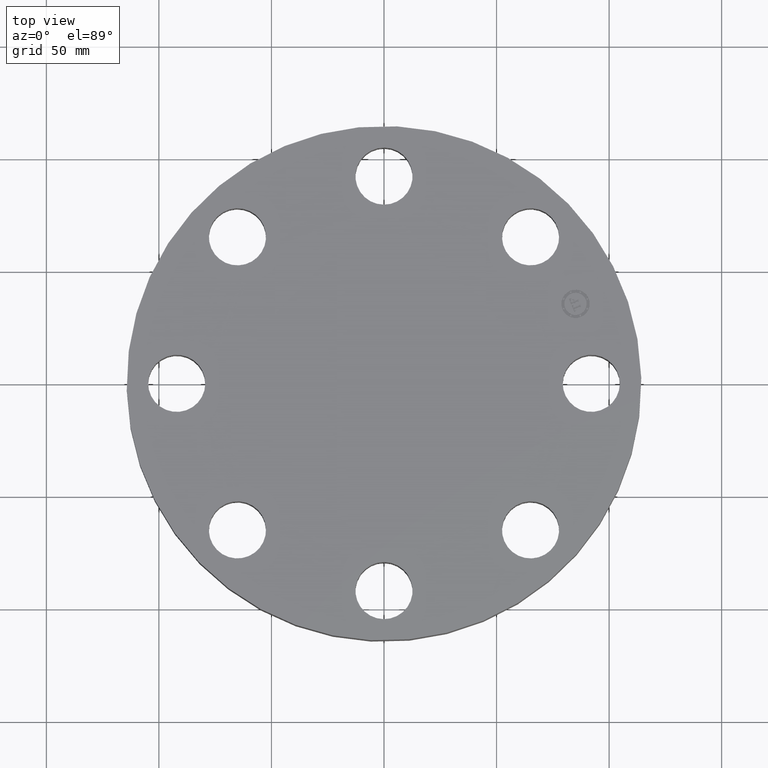
[diagram: clean part render]
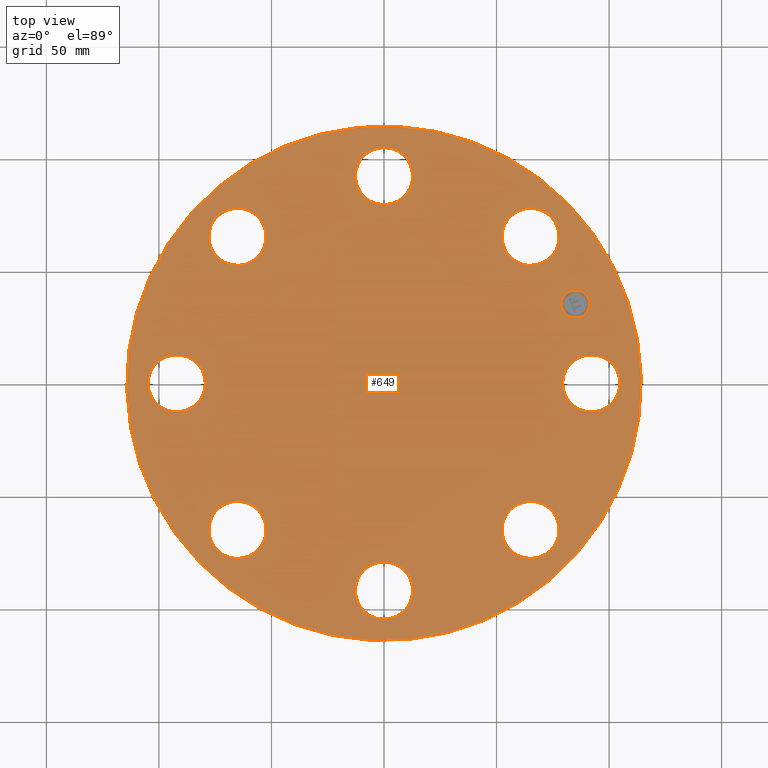
[diagram: same view with one face highlighted and labeled with its STEP entity id]
A machine part, top view. The second image highlights one B-rep face of the part: STEP entity #649.
In plain terms, the highlighted planar face has unit normal (0, 0, -1).
Its self-contained STEP definition (entity closure, byte-faithful):
#65=AXIS2_PLACEMENT_3D('Circle Axis2P3D',#63,#64,$) ;
#82=AXIS2_PLACEMENT_3D('Circle Axis2P3D',#80,#81,$) ;
#115=AXIS2_PLACEMENT_3D('Circle Axis2P3D',#113,#114,$) ;
#139=AXIS2_PLACEMENT_3D('Circle Axis2P3D',#137,#138,$) ;
#310=AXIS2_PLACEMENT_3D('Circle Axis2P3D',#308,#309,$) ;
#322=AXIS2_PLACEMENT_3D('Circle Axis2P3D',#320,#321,$) ;
#353=AXIS2_PLACEMENT_3D('Circle Axis2P3D',#351,#352,$) ;
#365=AXIS2_PLACEMENT_3D('Circle Axis2P3D',#363,#364,$) ;
#396=AXIS2_PLACEMENT_3D('Circle Axis2P3D',#394,#395,$) ;
#408=AXIS2_PLACEMENT_3D('Circle Axis2P3D',#406,#407,$) ;
#439=AXIS2_PLACEMENT_3D('Circle Axis2P3D',#437,#438,$) ;
#451=AXIS2_PLACEMENT_3D('Circle Axis2P3D',#449,#450,$) ;
#482=AXIS2_PLACEMENT_3D('Circle Axis2P3D',#480,#481,$) ;
#494=AXIS2_PLACEMENT_3D('Circle Axis2P3D',#492,#493,$) ;
#525=AXIS2_PLACEMENT_3D('Circle Axis2P3D',#523,#524,$) ;
#537=AXIS2_PLACEMENT_3D('Circle Axis2P3D',#535,#536,$) ;
#568=AXIS2_PLACEMENT_3D('Circle Axis2P3D',#566,#567,$) ;
#580=AXIS2_PLACEMENT_3D('Circle Axis2P3D',#578,#579,$) ;
#593=AXIS2_PLACEMENT_3D('Plane Axis2P3D',#590,#591,#592) ;
#633=AXIS2_PLACEMENT_3D('Circle Axis2P3D',#631,#632,$) ;
#642=AXIS2_PLACEMENT_3D('Circle Axis2P3D',#640,#641,$) ;
#46=CARTESIAN_POINT('Vertex',(3.18620871907,0.239712769303,1.38000000001)) ;
#60=CARTESIAN_POINT('Vertex',(4.06379128096,-0.239712769303,1.38000000001)) ;
#63=CARTESIAN_POINT('Axis2P3D Location',(3.62500000001,0.,1.38000000001)) ;
#80=CARTESIAN_POINT('Axis2P3D Location',(3.62500000001,0.,1.38000000001)) ;
#110=CARTESIAN_POINT('Vertex',(2.15741492373,3.94912152852,1.38000000001)) ;
#113=CARTESIAN_POINT('Axis2P3D Location',(0.,0.,1.38000000001)) ;
#117=CARTESIAN_POINT('Vertex',(-2.15741492373,-3.94912152852,1.38000000001)) ;
#137=CARTESIAN_POINT('Axis2P3D Location',(0.,0.,1.38000000001)) ;
#298=CARTESIAN_POINT('Vertex',(-2.42249231624,2.08348726682,1.38000000001)) ;
#305=CARTESIAN_POINT('Vertex',(-2.70403184738,3.04303689681,1.38000000001)) ;
#308=CARTESIAN_POINT('Axis2P3D Location',(-2.56326208181,2.56326208181,1.38000000001)) ;
#320=CARTESIAN_POINT('Axis2P3D Location',(-2.56326208181,2.56326208181,1.38000000001)) ;
#341=CARTESIAN_POINT('Vertex',(0.239712769303,-3.18620871907,1.38000000001)) ;
#348=CARTESIAN_POINT('Vertex',(-0.239712769303,-4.06379128096,1.38000000001)) ;
#351=CARTESIAN_POINT('Axis2P3D Location',(-3.37515236756E-016,-3.62500000001,1.38000000001)) ;
#363=CARTESIAN_POINT('Axis2P3D Location',(-3.37515236756E-016,-3.62500000001,1.38000000001)) ;
#384=CARTESIAN_POINT('Vertex',(-0.239712769303,3.18620871907,1.38000000001)) ;
#391=CARTESIAN_POINT('Vertex',(0.239712769303,4.06379128096,1.38000000001)) ;
#394=CARTESIAN_POINT('Axis2P3D Location',(-6.65901697039E-016,3.62500000001,1.38000000001)) ;
#406=CARTESIAN_POINT('Axis2P3D Location',(-6.65901697039E-016,3.62500000001,1.38000000001)) ;
#427=CARTESIAN_POINT('Vertex',(-2.08348726682,-2.42249231624,1.38000000001)) ;
#434=CARTESIAN_POINT('Vertex',(-3.04303689681,-2.70403184738,1.38000000001)) ;
#437=CARTESIAN_POINT('Axis2P3D Location',(-2.56326208181,-2.56326208181,1.38000000001)) ;
#449=CARTESIAN_POINT('Axis2P3D Location',(-2.56326208181,-2.56326208181,1.38000000001)) ;
#470=CARTESIAN_POINT('Vertex',(2.08348726682,2.42249231624,1.38000000001)) ;
#477=CARTESIAN_POINT('Vertex',(3.04303689681,2.70403184738,1.38000000001)) ;
#480=CARTESIAN_POINT('Axis2P3D Location',(2.56326208181,2.56326208181,1.38000000001)) ;
#492=CARTESIAN_POINT('Axis2P3D Location',(2.56326208181,2.56326208181,1.38000000001)) ;
#513=CARTESIAN_POINT('Vertex',(-3.18620871907,-0.239712769303,1.38000000001)) ;
#520=CARTESIAN_POINT('Vertex',(-4.06379128096,0.239712769303,1.38000000001)) ;
#523=CARTESIAN_POINT('Axis2P3D Location',(-3.62500000001,-4.43934464693E-016,1.38000000001)) ;
#535=CARTESIAN_POINT('Axis2P3D Location',(-3.62500000001,-4.43934464693E-016,1.38000000001)) ;
#556=CARTESIAN_POINT('Vertex',(2.42249231624,-2.08348726682,1.38000000001)) ;
#563=CARTESIAN_POINT('Vertex',(2.70403184738,-3.04303689681,1.38000000001)) ;
#566=CARTESIAN_POINT('Axis2P3D Location',(2.56326208181,-2.56326208181,1.38000000001)) ;
#578=CARTESIAN_POINT('Axis2P3D Location',(2.56326208181,-2.56326208181,1.38000000001)) ;
#590=CARTESIAN_POINT('Axis2P3D Location',(0.,4.50000000002,1.38000000001)) ;
#631=CARTESIAN_POINT('Axis2P3D Location',(3.34906330537,1.38722744233,1.38000000001)) ;
#635=CARTESIAN_POINT('Vertex',(3.25434915586,1.61588762663,1.38000000001)) ;
#637=CARTESIAN_POINT('Vertex',(3.44377745488,1.15856725803,1.38000000001)) ;
#640=CARTESIAN_POINT('Axis2P3D Location',(3.34906330537,1.38722744233,1.38000000001)) ;
#64=DIRECTION('Axis2P3D Direction',(0.,-0.,-0.0393700787402)) ;
#81=DIRECTION('Axis2P3D Direction',(0.,-0.,-0.0393700787402)) ;
#114=DIRECTION('Axis2P3D Direction',(0.,0.,-0.0393700787402)) ;
#138=DIRECTION('Axis2P3D Direction',(0.,0.,-0.0393700787402)) ;
#309=DIRECTION('Axis2P3D Direction',(0.,0.,-0.0393700787402)) ;
#321=DIRECTION('Axis2P3D Direction',(0.,0.,-0.0393700787402)) ;
#352=DIRECTION('Axis2P3D Direction',(0.,-0.,-0.0393700787402)) ;
#364=DIRECTION('Axis2P3D Direction',(0.,-0.,-0.0393700787402)) ;
#395=DIRECTION('Axis2P3D Direction',(0.,0.,-0.0393700787402)) ;
#407=DIRECTION('Axis2P3D Direction',(0.,0.,-0.0393700787402)) ;
#438=DIRECTION('Axis2P3D Direction',(-0.,0.,-0.0393700787402)) ;
#450=DIRECTION('Axis2P3D Direction',(-0.,0.,-0.0393700787402)) ;
#481=DIRECTION('Axis2P3D Direction',(0.,0.,-0.0393700787402)) ;
#493=DIRECTION('Axis2P3D Direction',(0.,0.,-0.0393700787402)) ;
#524=DIRECTION('Axis2P3D Direction',(-0.,0.,-0.0393700787402)) ;
#536=DIRECTION('Axis2P3D Direction',(-0.,0.,-0.0393700787402)) ;
#567=DIRECTION('Axis2P3D Direction',(0.,-0.,-0.0393700787402)) ;
#579=DIRECTION('Axis2P3D Direction',(0.,-0.,-0.0393700787402)) ;
#591=DIRECTION('Axis2P3D Direction',(0.,0.,-0.0393700787402)) ;
#592=DIRECTION('Axis2P3D XDirection',(0.0393700787402,0.,0.)) ;
#632=DIRECTION('Axis2P3D Direction',(0.,0.,-0.0393700787402)) ;
#641=DIRECTION('Axis2P3D Direction',(0.,0.,-0.0393700787402)) ;
#596=ORIENTED_EDGE('',*,*,#119,.F.) ;
#597=ORIENTED_EDGE('',*,*,#141,.F.) ;
#600=ORIENTED_EDGE('',*,*,#67,.T.) ;
#601=ORIENTED_EDGE('',*,*,#84,.T.) ;
#604=ORIENTED_EDGE('',*,*,#582,.T.) ;
#605=ORIENTED_EDGE('',*,*,#570,.T.) ;
#608=ORIENTED_EDGE('',*,*,#367,.T.) ;
#609=ORIENTED_EDGE('',*,*,#355,.T.) ;
#612=ORIENTED_EDGE('',*,*,#453,.T.) ;
#613=ORIENTED_EDGE('',*,*,#441,.T.) ;
#616=ORIENTED_EDGE('',*,*,#539,.T.) ;
#617=ORIENTED_EDGE('',*,*,#527,.T.) ;
#620=ORIENTED_EDGE('',*,*,#324,.T.) ;
#621=ORIENTED_EDGE('',*,*,#312,.T.) ;
#624=ORIENTED_EDGE('',*,*,#410,.T.) ;
#625=ORIENTED_EDGE('',*,*,#398,.T.) ;
#628=ORIENTED_EDGE('',*,*,#496,.T.) ;
#629=ORIENTED_EDGE('',*,*,#484,.T.) ;
#646=ORIENTED_EDGE('',*,*,#639,.T.) ;
#647=ORIENTED_EDGE('',*,*,#644,.T.) ;
#602=FACE_BOUND('',#599,.T.) ;
#606=FACE_BOUND('',#603,.T.) ;
#610=FACE_BOUND('',#607,.T.) ;
#614=FACE_BOUND('',#611,.T.) ;
#618=FACE_BOUND('',#615,.T.) ;
#622=FACE_BOUND('',#619,.T.) ;
#626=FACE_BOUND('',#623,.T.) ;
#630=FACE_BOUND('',#627,.T.) ;
#648=FACE_BOUND('',#645,.T.) ;
#649=ADVANCED_FACE('PartBody',(#598,#602,#606,#610,#614,#618,#622,#626,#630,#648),#594,.F.) ;
#66=CIRCLE('generated circle',#65,0.500000000002) ;
#83=CIRCLE('generated circle',#82,0.500000000002) ;
#116=CIRCLE('generated circle',#115,4.50000000002) ;
#140=CIRCLE('generated circle',#139,4.50000000002) ;
#311=CIRCLE('generated circle',#310,0.500000000002) ;
#323=CIRCLE('generated circle',#322,0.500000000002) ;
#354=CIRCLE('generated circle',#353,0.500000000002) ;
#366=CIRCLE('generated circle',#365,0.500000000002) ;
#397=CIRCLE('generated circle',#396,0.500000000002) ;
#409=CIRCLE('generated circle',#408,0.500000000002) ;
#440=CIRCLE('generated circle',#439,0.500000000002) ;
#452=CIRCLE('generated circle',#451,0.500000000002) ;
#483=CIRCLE('generated circle',#482,0.500000000002) ;
#495=CIRCLE('generated circle',#494,0.500000000002) ;
#526=CIRCLE('generated circle',#525,0.500000000002) ;
#538=CIRCLE('generated circle',#537,0.500000000002) ;
#569=CIRCLE('generated circle',#568,0.500000000002) ;
#581=CIRCLE('generated circle',#580,0.500000000002) ;
#634=CIRCLE('generated circle',#633,0.247500000001) ;
#643=CIRCLE('generated circle',#642,0.247500000001) ;
#67=EDGE_CURVE('',#47,#61,#66,.T.) ;
#84=EDGE_CURVE('',#61,#47,#83,.T.) ;
#119=EDGE_CURVE('',#111,#118,#116,.T.) ;
#141=EDGE_CURVE('',#118,#111,#140,.T.) ;
#312=EDGE_CURVE('',#299,#306,#311,.T.) ;
#324=EDGE_CURVE('',#306,#299,#323,.T.) ;
#355=EDGE_CURVE('',#342,#349,#354,.T.) ;
#367=EDGE_CURVE('',#349,#342,#366,.T.) ;
#398=EDGE_CURVE('',#385,#392,#397,.T.) ;
#410=EDGE_CURVE('',#392,#385,#409,.T.) ;
#441=EDGE_CURVE('',#428,#435,#440,.T.) ;
#453=EDGE_CURVE('',#435,#428,#452,.T.) ;
#484=EDGE_CURVE('',#471,#478,#483,.T.) ;
#496=EDGE_CURVE('',#478,#471,#495,.T.) ;
#527=EDGE_CURVE('',#514,#521,#526,.T.) ;
#539=EDGE_CURVE('',#521,#514,#538,.T.) ;
#570=EDGE_CURVE('',#557,#564,#569,.T.) ;
#582=EDGE_CURVE('',#564,#557,#581,.T.) ;
#639=EDGE_CURVE('',#636,#638,#634,.T.) ;
#644=EDGE_CURVE('',#638,#636,#643,.T.) ;
#595=EDGE_LOOP('',(#596,#597)) ;
#599=EDGE_LOOP('',(#600,#601)) ;
#603=EDGE_LOOP('',(#604,#605)) ;
#607=EDGE_LOOP('',(#608,#609)) ;
#611=EDGE_LOOP('',(#612,#613)) ;
#615=EDGE_LOOP('',(#616,#617)) ;
#619=EDGE_LOOP('',(#620,#621)) ;
#623=EDGE_LOOP('',(#624,#625)) ;
#627=EDGE_LOOP('',(#628,#629)) ;
#645=EDGE_LOOP('',(#646,#647)) ;
#598=FACE_OUTER_BOUND('',#595,.T.) ;
#594=PLANE('',#593) ;
#47=VERTEX_POINT('',#46) ;
#61=VERTEX_POINT('',#60) ;
#111=VERTEX_POINT('',#110) ;
#118=VERTEX_POINT('',#117) ;
#299=VERTEX_POINT('',#298) ;
#306=VERTEX_POINT('',#305) ;
#342=VERTEX_POINT('',#341) ;
#349=VERTEX_POINT('',#348) ;
#385=VERTEX_POINT('',#384) ;
#392=VERTEX_POINT('',#391) ;
#428=VERTEX_POINT('',#427) ;
#435=VERTEX_POINT('',#434) ;
#471=VERTEX_POINT('',#470) ;
#478=VERTEX_POINT('',#477) ;
#514=VERTEX_POINT('',#513) ;
#521=VERTEX_POINT('',#520) ;
#557=VERTEX_POINT('',#556) ;
#564=VERTEX_POINT('',#563) ;
#636=VERTEX_POINT('',#635) ;
#638=VERTEX_POINT('',#637) ;